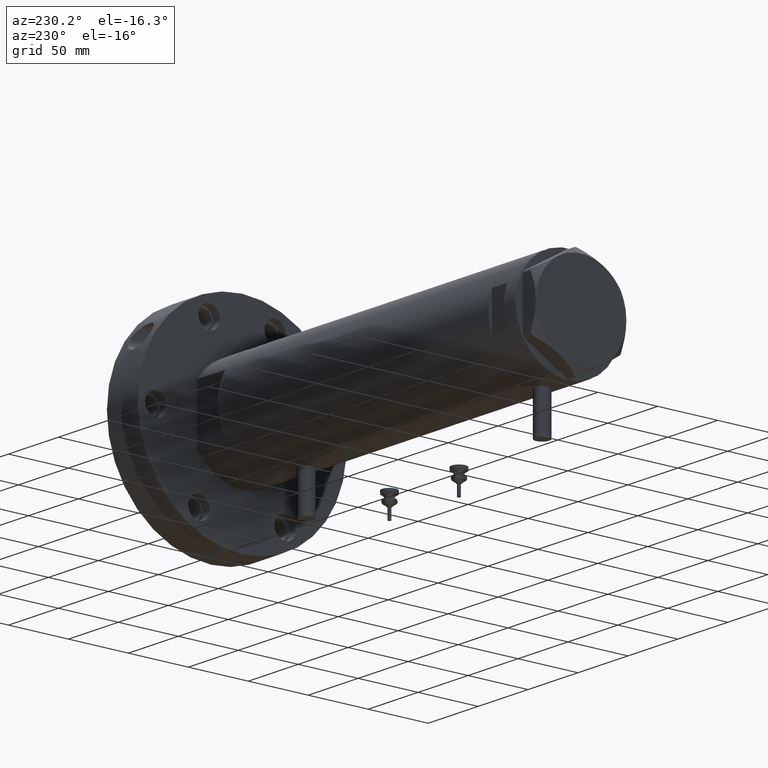
[diagram: clean part render]
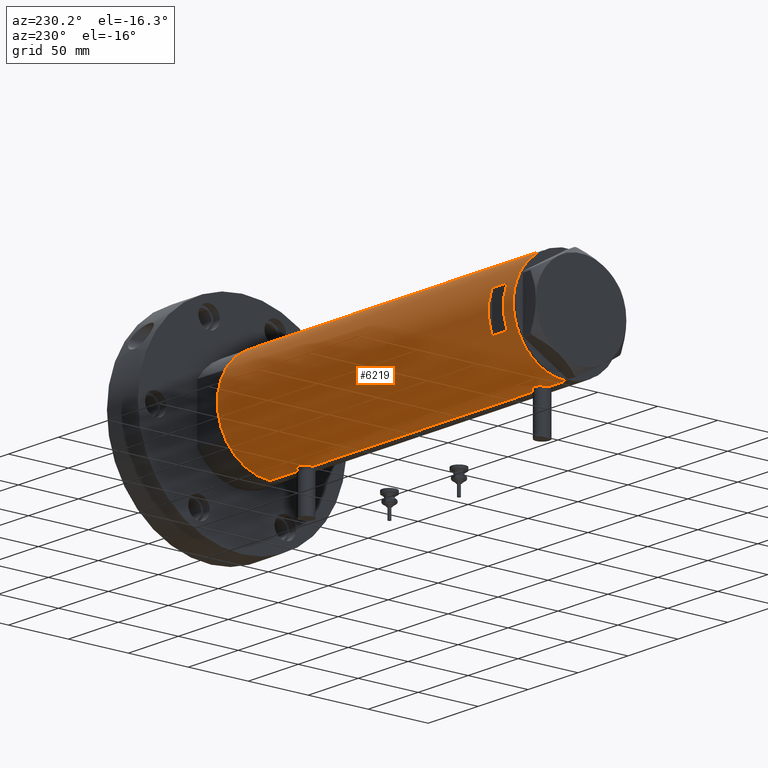
[diagram: same view with one face highlighted and labeled with its STEP entity id]
A machine part, auxiliary view. The second image highlights one B-rep face of the part: STEP entity #6219.
In plain terms, the highlighted cylindrical surface (partial cylindrical patch) has radius 44 mm, axis along (-1, -0, 0).
Its self-contained STEP definition (entity closure, byte-faithful):
#11 = ORIENTED_EDGE ( 'NONE', *, *, #5901, .F. ) ;
#50 = CARTESIAN_POINT ( 'NONE',  ( 43.71454618729809738, 5.012329428678965471, 134.5593697405831222 ) ) ;
#59 = DIRECTION ( 'NONE',  ( 1.000000000000000000, 0.000000000000000000, 0.000000000000000000 ) ) ;
#71 = CARTESIAN_POINT ( 'NONE',  ( 43.17306590853065984, 8.492365194390513849, -80.80987467306545113 ) ) ;
#93 = CARTESIAN_POINT ( 'NONE',  ( 43.88297407487989688, 3.222431612395376455, 116.4277179797065997 ) ) ;
#102 = DIRECTION ( 'NONE',  ( 0.000000000000000000, 0.000000000000000000, 1.000000000000000000 ) ) ;
#114 = CARTESIAN_POINT ( 'NONE',  ( 43.07641822757289418, 8.969229373860567733, -81.66603764209828853 ) ) ;
#119 = LINE ( 'NONE', #4131, #7492 ) ;
#120 = CARTESIAN_POINT ( 'NONE',  ( -43.83593455218809964, 3.811409182021288533, 129.1701492770350228 ) ) ;
#135 = CARTESIAN_POINT ( 'NONE',  ( 43.35294442506074120, 7.532526048221051873, 119.2906458550888829 ) ) ;
#172 = ORIENTED_EDGE ( 'NONE', *, *, #5696, .F. ) ;
#182 = CARTESIAN_POINT ( 'NONE',  ( 43.50382207688845426, 6.605942769308308371, -78.56395311161780626 ) ) ;
#189 = CARTESIAN_POINT ( 'NONE',  ( -43.55963022497230952, 6.210088036293396563, 125.0164616301742484 ) ) ;
#207 = CARTESIAN_POINT ( 'NONE',  ( 43.50265731352003939, 6.601850423195601003, 118.3818083270105177 ) ) ;
#225 = CARTESIAN_POINT ( 'NONE',  ( 42.96879251999280314, 9.470609476412112926, -89.32722899941057904 ) ) ;
#243 = CARTESIAN_POINT ( 'NONE',  ( -43.71938389712227746, 4.966728892888062852, -108.0838554765912960 ) ) ;
#316 = CARTESIAN_POINT ( 'NONE',  ( 0.000000000000000000, 0.000000000000000000, 138.1999999999999886 ) ) ;
#357 = CARTESIAN_POINT ( 'NONE',  ( -43.91315028150560096, 2.769134003554746482, -117.5068261937540370 ) ) ;
#394 = CARTESIAN_POINT ( 'NONE',  ( -43.74805001749254529, 4.711035428619386956, -116.0277606412579985 ) ) ;
#396 = EDGE_CURVE ( 'NONE', #5017, #1810, #119, .T. ) ;
#472 = CARTESIAN_POINT ( 'NONE',  ( -43.97754480947187261, 1.419697478855583839, 130.2900327605207451 ) ) ;
#533 = EDGE_CURVE ( 'NONE', #2483, #5858, #2572, .T. ) ;
#534 = CARTESIAN_POINT ( 'NONE',  ( 43.27822890220284791, 7.945655169171514487, -92.20725383289293120 ) ) ;
#622 = CARTESIAN_POINT ( 'NONE',  ( -44.00000000000000000, 3.205170455528113082E-15, 130.4500000000000171 ) ) ;
#642 = B_SPLINE_CURVE_WITH_KNOTS ( 'NONE', 3,
 ( #7450, #3408, #2261, #3981, #5723, #2226, #4558, #1691, #4020, #1120, #2833, #5152, #6339, #3441, #534, #2866, #5187, #4634, #728, #7063, #225, #1838, #4162, #5446, #3702, #1301, #4884, #2412, #4739, #6631, #114, #3547, #71, #3137, #3063, #1985, #6017, #182, #5403, #3023, #2487, #6481, #1262, #1375, #7213, #7097, #800, #2979, #2526, #2566 ),
 .UNSPECIFIED., .F., .F.,
 ( 4, 2, 2, 2, 2, 2, 2, 2, 2, 2, 2, 2, 2, 2, 2, 2, 2, 2, 2, 2, 2, 2, 2, 2, 4 ),
 ( 2.479523669370822448E-18, 0.001960456513248891482, 0.002940684769873340258, 0.003920913026497789035, 0.005881369539746669241, 0.006861597796371108476, 0.007841826052995546845, 0.009802282566244456541, 0.01078251082286890879, 0.01176273907949335930, 0.01274296733611781154, 0.01372319559274226206, 0.01568365210599112838, 0.01764410861923999124, 0.01960456513248885757, 0.02058479338911329073, 0.02156502164573771696, 0.02254524990236214665, 0.02352547815898657982, 0.02548593467223546696, 0.02646616292885991054, 0.02744639118548435758, 0.02940684769873324472, 0.03038707595535769176, 0.03136730421198213881 ),
 .UNSPECIFIED. ) ;
#664 = CARTESIAN_POINT ( 'NONE',  ( 42.86396777580259965, 9.934664719553397916, 127.2157619902652357 ) ) ;
#708 = CARTESIAN_POINT ( 'NONE',  ( 43.17306590853067405, 8.492365194390501415, 131.1901253269345773 ) ) ;
#728 = CARTESIAN_POINT ( 'NONE',  ( 43.04663170950394857, 9.110642017076081345, -90.23547502190392322 ) ) ;
#736 = CARTESIAN_POINT ( 'NONE',  ( -43.95549163632550460, 2.014511215452026160, 118.2694104429502460 ) ) ;
#751 = CARTESIAN_POINT ( 'NONE',  ( 44.00000000000001421, 0.3269372501759423844, 135.9000000000000625 ) ) ;
#773 = CARTESIAN_POINT ( 'NONE',  ( -44.00000000000000711, 0.4081702738789175222, 117.9500000000000313 ) ) ;
#784 = CARTESIAN_POINT ( 'NONE',  ( 42.84863276153905787, 9.999733523508361088, 125.2413009524922245 ) ) ;
#800 = CARTESIAN_POINT ( 'NONE',  ( 43.98169492814104586, 1.310824514239765426, -76.18080219619319848 ) ) ;
#823 = CARTESIAN_POINT ( 'NONE',  ( 43.61291203895921598, 5.829986172017925128, 117.7687128921317452 ) ) ;
#834 = CARTESIAN_POINT ( 'NONE',  ( 44.00000000000000000, -3.917104602093038540E-21, -76.10000000000000853 ) ) ;
#859 = CARTESIAN_POINT ( 'NONE',  ( -43.58362292239462477, 6.039157555656595733, -110.2773642155195688 ) ) ;
#867 = EDGE_CURVE ( 'NONE', #6317, #6572, #6440, .T. ) ;
#882 = DIRECTION ( 'NONE',  ( 0.000000000000000000, 0.000000000000000000, 1.000000000000000000 ) ) ;
#893 = CARTESIAN_POINT ( 'NONE',  ( -43.61859254253774054, 5.782454868881351295, -109.5021359910553542 ) ) ;
#924 = CIRCLE ( 'NONE', #6157, 44.00000000000000000 ) ;
#1113 = CARTESIAN_POINT ( 'NONE',  ( 0.000000000000000000, 0.000000000000000000, 123.1999999999999744 ) ) ;
#1120 = CARTESIAN_POINT ( 'NONE',  ( 43.61291203895921598, 5.829986172017927792, -94.23128710786834006 ) ) ;
#1232 = CARTESIAN_POINT ( 'NONE',  ( -43.59995593514495482, 5.920088975424567579, 126.2141790869178379 ) ) ;
#1246 = CARTESIAN_POINT ( 'NONE',  ( 43.04663170950396278, 9.110642017076083121, 121.7645249780961052 ) ) ;
#1262 = CARTESIAN_POINT ( 'NONE',  ( 43.80640706382533978, 4.134078575915388853, -76.98867178437912173 ) ) ;
#1267 = CARTESIAN_POINT ( 'NONE',  ( -43.61859207403892214, 5.782454990768616021, 126.5978640851534180 ) ) ;
#1282 = CARTESIAN_POINT ( 'NONE',  ( 43.88561577393363677, 3.228056721358719017, 135.3872166572783158 ) ) ;
#1301 = CARTESIAN_POINT ( 'NONE',  ( 42.84850876528984287, 10.00026482975807873, -85.44941694529576637 ) ) ;
#1321 = CARTESIAN_POINT ( 'NONE',  ( 43.98169492814102455, 1.310824514239774530, 135.8191978038068441 ) ) ;
#1339 = CIRCLE ( 'NONE', #4266, 44.00000000000000000 ) ;
#1359 = CARTESIAN_POINT ( 'NONE',  ( -43.99417607942194763, 0.8200150578638748522, -105.6906332748326207 ) ) ;
#1375 = CARTESIAN_POINT ( 'NONE',  ( 43.88561577393361546, 3.228056721358708803, -76.61278334272179791 ) ) ;
#1380 = CARTESIAN_POINT ( 'NONE',  ( -43.62981559643957752, 5.696090409300651025, 121.6194863458547673 ) ) ;
#1392 = CARTESIAN_POINT ( 'NONE',  ( 42.92259096922159500, 9.678247830257124207, 128.5000599302879323 ) ) ;
#1413 = VERTEX_POINT ( 'NONE', #7374 ) ;
#1432 = CARTESIAN_POINT ( 'NONE',  ( -43.66575107734168171, 5.414026674167576658, -115.0293508803769811 ) ) ;
#1469 = CARTESIAN_POINT ( 'NONE',  ( -43.64133398152736021, 5.607447751852152606, -114.6678604501243512 ) ) ;
#1481 = DIRECTION ( 'NONE',  ( 1.000000000000000000, 0.000000000000000000, 0.000000000000000000 ) ) ;
#1505 = VERTEX_POINT ( 'NONE', #3988 ) ;
#1511 = CARTESIAN_POINT ( 'NONE',  ( -15.96871942267132027, 40.99999999999999289, 123.1999999999999886 ) ) ;
#1544 = DIRECTION ( 'NONE',  ( 0.000000000000000000, 0.000000000000000000, 1.000000000000000000 ) ) ;
#1590 = VERTEX_POINT ( 'NONE', #5688 ) ;
#1610 = EDGE_CURVE ( 'NONE', #5571, #5114, #2639, .T. ) ;
#1691 = CARTESIAN_POINT ( 'NONE',  ( 43.77939001959703802, 4.442287752090381403, -95.08306177559161654 ) ) ;
#1698 = CARTESIAN_POINT ( 'NONE',  ( -44.00000000000000000, 3.205170455528113082E-15, 130.4500000000000171 ) ) ;
#1702 = DIRECTION ( 'NONE',  ( 1.000000000000000000, 0.000000000000000000, 0.000000000000000000 ) ) ;
#1762 = CARTESIAN_POINT ( 'NONE',  ( 44.00000000000000000, 0.000000000000000000, -148.1999999999999886 ) ) ;
#1806 = CARTESIAN_POINT ( 'NONE',  ( -43.55973179376101001, 6.209370339246233605, 123.3793823294013379 ) ) ;
#1810 = VERTEX_POINT ( 'NONE', #7409 ) ;
#1823 = CARTESIAN_POINT ( 'NONE',  ( 43.35257020184193522, 7.523219862841646233, 132.4960255408413730 ) ) ;
#1827 = VECTOR ( 'NONE', #1544, 1000.000000000000000 ) ;
#1838 = CARTESIAN_POINT ( 'NONE',  ( 42.92624534982630280, 9.661626915142804251, -88.70008004144708025 ) ) ;
#1846 = CARTESIAN_POINT ( 'NONE',  ( -43.55386785759471735, 6.249847571481741859, 124.6105494761795569 ) ) ;
#1858 = CARTESIAN_POINT ( 'NONE',  ( 43.39051256276903956, 7.301963662770305064, 132.7402446821294575 ) ) ;
#1869 = DIRECTION ( 'NONE',  ( -0.000000000000000000, -0.000000000000000000, -1.000000000000000000 ) ) ;
#1877 = CARTESIAN_POINT ( 'NONE',  ( -43.74805001749256661, 4.711035428619386956, 120.0722393587420669 ) ) ;
#1893 = CARTESIAN_POINT ( 'NONE',  ( 43.27871541412905287, 7.937063204555979468, 131.9917499724603545 ) ) ;
#1932 = CARTESIAN_POINT ( 'NONE',  ( -44.00000000000000000, 4.742435893011557518E-16, -105.6499999999999915 ) ) ;
#1956 = ORIENTED_EDGE ( 'NONE', *, *, #6657, .F. ) ;
#1970 = CARTESIAN_POINT ( 'NONE',  ( 43.94229162222109863, 2.275476993733910547, 116.1568553577769620 ) ) ;
#1985 = CARTESIAN_POINT ( 'NONE',  ( 43.35257020184193522, 7.523219862841656003, -79.50397445915866967 ) ) ;
#2047 = CARTESIAN_POINT ( 'NONE',  ( -43.97068415157983878, 1.617901284326946909, -105.8595487169995266 ) ) ;
#2061 = CARTESIAN_POINT ( 'NONE',  ( 15.96871942267132027, 40.99999999999999289, 138.1999999999999886 ) ) ;
#2086 = CARTESIAN_POINT ( 'NONE',  ( -43.99413512814552263, 0.8228129877960659311, -118.1090831432582604 ) ) ;
#2088 = DIRECTION ( 'NONE',  ( 1.000000000000000000, -8.881784197001252323E-16, 0.000000000000000000 ) ) ;
#2158 = CARTESIAN_POINT ( 'NONE',  ( -43.55382423478827292, 6.250151562062086441, -112.3058952948734088 ) ) ;
#2184 = VERTEX_POINT ( 'NONE', #1511 ) ;
#2196 = CARTESIAN_POINT ( 'NONE',  ( -44.00000000000001421, 0.4135148353567998369, 130.4500000000000171 ) ) ;
#2212 = CARTESIAN_POINT ( 'NONE',  ( -15.96871942267132027, 40.99999999999999289, 138.1999999999999886 ) ) ;
#2226 = CARTESIAN_POINT ( 'NONE',  ( 43.88297407487990398, 3.222431612395379119, -95.57228202029342867 ) ) ;
#2231 = CARTESIAN_POINT ( 'NONE',  ( -43.95446647384545003, 2.010857111636596084, 130.1212422636393455 ) ) ;
#2261 = CARTESIAN_POINT ( 'NONE',  ( 43.98503110884232115, 1.314607393679875669, -96.03470984345551642 ) ) ;
#2378 = VECTOR ( 'NONE', #1869, 1000.000000000000000 ) ;
#2390 = CARTESIAN_POINT ( 'NONE',  ( 43.85884410404901246, 3.534688330930383593, 116.5398019124966424 ) ) ;
#2398 = CARTESIAN_POINT ( 'NONE',  ( 0.000000000000000000, 0.000000000000000000, -148.1999999999999886 ) ) ;
#2412 = CARTESIAN_POINT ( 'NONE',  ( 42.92259096922160921, 9.678247830257127760, -83.49994006971209615 ) ) ;
#2419 = CARTESIAN_POINT ( 'NONE',  ( -43.71901936021024682, 4.969830049220625767, 120.3883236230112743 ) ) ;
#2427 = ORIENTED_EDGE ( 'NONE', *, *, #7288, .F. ) ;
#2434 = CARTESIAN_POINT ( 'NONE',  ( 42.96547725528407824, 9.488625330801086832, 129.1245034721107743 ) ) ;
#2459 = CARTESIAN_POINT ( 'NONE',  ( -43.66555354895123742, 5.415612800338316823, 127.3265635717755515 ) ) ;
#2471 = CARTESIAN_POINT ( 'NONE',  ( 43.27822890220284791, 7.945655169171514487, 119.7927461671070830 ) ) ;
#2483 = VERTEX_POINT ( 'NONE', #7338 ) ;
#2487 = CARTESIAN_POINT ( 'NONE',  ( 43.71454618729809027, 5.012329428678959253, -77.44063025941690626 ) ) ;
#2509 = CARTESIAN_POINT ( 'NONE',  ( 43.07641822757289418, 8.969229373860580168, 130.3339623579017257 ) ) ;
#2511 = LINE ( 'NONE', #6762, #1827 ) ;
#2526 = CARTESIAN_POINT ( 'NONE',  ( 44.00000000000002132, 0.3269372501759363336, -76.10000000000002274 ) ) ;
#2534 = CARTESIAN_POINT ( 'NONE',  ( -43.58221825186232223, 6.049526113783017855, 122.5773702918204293 ) ) ;
#2549 = CARTESIAN_POINT ( 'NONE',  ( 42.84850876528984287, 10.00026482975808406, 126.5505830547042621 ) ) ;
#2550 = CIRCLE ( 'NONE', #5947, 44.00000000000000000 ) ;
#2566 = CARTESIAN_POINT ( 'NONE',  ( 44.00000000000000000, -3.917104602093038540E-21, -76.10000000000000853 ) ) ;
#2572 = LINE ( 'NONE', #7329, #7124 ) ;
#2617 = CARTESIAN_POINT ( 'NONE',  ( -43.99999999999997158, 0.4081702738789203533, -118.1499999999999631 ) ) ;
#2639 = B_SPLINE_CURVE_WITH_KNOTS ( 'NONE', 3,
 ( #1698, #2196, #6264, #472, #7456, #2231, #4247, #5410, #7028, #120, #6452, #7181, #6521, #7071, #2459, #3677, #1267, #1232, #3635, #5989, #189, #1846, #6025, #1806, #2534, #4782, #1380, #4853, #7140, #4813, #2419, #1877, #5342, #4168, #3553, #3069, #6486, #3593, #736, #3030, #4132, #773, #3707 ),
 .UNSPECIFIED., .F., .F.,
 ( 4, 2, 2, 2, 2, 2, 2, 2, 1, 2, 2, 2, 2, 2, 2, 2, 2, 2, 2, 2, 2, 4 ),
 ( 3.114226524098576417E-18, 0.001222818171749707637, 0.001834227257624559829, 0.002445636343499412238, 0.003668454515249116622, 0.004891272686998821874, 0.006114090858748525391, 0.006725499944623378884, 0.007336909030498230642, 0.007948318116373082401, 0.008559727202247935027, 0.009782545373997636809, 0.01100536354574729869, 0.01222818171749695884, 0.01283959080337180973, 0.01345099988924666062, 0.01467381806099635894, 0.01589663623274606072, 0.01650804531862090987, 0.01711945440449575903, 0.01834227257624546428, 0.01956509074799516260 ),
 .UNSPECIFIED. ) ;
#2656 = CARTESIAN_POINT ( 'NONE',  ( -43.67863969133946966, 5.309394106110037370, -108.5962070349745403 ) ) ;
#2697 = ORIENTED_EDGE ( 'NONE', *, *, #1610, .F. ) ;
#2732 = CARTESIAN_POINT ( 'NONE',  ( -43.91413175532567692, 2.773555030353453965, -106.2841576163325925 ) ) ;
#2827 = CARTESIAN_POINT ( 'NONE',  ( -44.00000000000000000, 5.388445781982983516E-15, -118.1500000000000057 ) ) ;
#2833 = CARTESIAN_POINT ( 'NONE',  ( 43.57657781376908446, 6.094873943596679666, -94.03474301119597101 ) ) ;
#2866 = CARTESIAN_POINT ( 'NONE',  ( 43.17277162440355198, 8.493905080221260562, -91.38787035108497037 ) ) ;
#2979 = CARTESIAN_POINT ( 'NONE',  ( 43.99635668041006653, 0.6544833911834552209, -76.11599291522472299 ) ) ;
#3001 = CARTESIAN_POINT ( 'NONE',  ( 43.46520118248736253, 6.843279251446918288, 118.6010167278784024 ) ) ;
#3023 = CARTESIAN_POINT ( 'NONE',  ( 43.68141895191830315, 5.292250119194731539, -77.60895047714808470 ) ) ;
#3030 = CARTESIAN_POINT ( 'NONE',  ( -43.97181775256599678, 1.624866278047412349, 118.1510708161490442 ) ) ;
#3036 = CARTESIAN_POINT ( 'NONE',  ( 44.00000000000000000, 0.000000000000000000, -148.1999999999999886 ) ) ;
#3039 = AXIS2_PLACEMENT_3D ( 'NONE', #1113, #3434, #5328 ) ;
#3045 = CARTESIAN_POINT ( 'NONE',  ( 43.57657781376909156, 6.094873943596689436, 117.9652569888040858 ) ) ;
#3063 = CARTESIAN_POINT ( 'NONE',  ( 43.27871541412905287, 7.937063204555986573, -80.00825002753971660 ) ) ;
#3069 = CARTESIAN_POINT ( 'NONE',  ( -43.88883895882798925, 3.130924084324100409, 118.7868754425185216 ) ) ;
#3081 = CARTESIAN_POINT ( 'NONE',  ( 44.00000000000000000, -3.917205576288906830E-21, 135.9000000000000341 ) ) ;
#3137 = CARTESIAN_POINT ( 'NONE',  ( 43.24261242176995523, 8.130827601038827623, -80.26944813145831858 ) ) ;
#3158 = CARTESIAN_POINT ( 'NONE',  ( -43.88883895882799635, 3.130924084324101297, -117.3131245574814727 ) ) ;
#3190 = CARTESIAN_POINT ( 'NONE',  ( -43.74833112883977293, 4.708208586952001617, -107.7694961649112457 ) ) ;
#3222 = CARTESIAN_POINT ( 'NONE',  ( -43.57657963456318839, 6.089610171536606664, -110.4782146041918622 ) ) ;
#3408 = CARTESIAN_POINT ( 'NONE',  ( 44.00000000000001421, 0.6630566900259825536, -96.09999999999998010 ) ) ;
#3434 = DIRECTION ( 'NONE',  ( -0.000000000000000000, -0.000000000000000000, 1.000000000000000000 ) ) ;
#3441 = CARTESIAN_POINT ( 'NONE',  ( 43.35294442506072699, 7.532526048221049209, -92.70935414491108872 ) ) ;
#3525 = EDGE_CURVE ( 'NONE', #7087, #2483, #924, .T. ) ;
#3547 = CARTESIAN_POINT ( 'NONE',  ( 43.13962074468734897, 8.660138848900672315, -81.08910258836064600 ) ) ;
#3553 = CARTESIAN_POINT ( 'NONE',  ( -43.87596296923809547, 3.305851531861729420, 118.8919641412373522 ) ) ;
#3558 = DIRECTION ( 'NONE',  ( 0.000000000000000000, 0.000000000000000000, 1.000000000000000000 ) ) ;
#3564 = ORIENTED_EDGE ( 'NONE', *, *, #5983, .T. ) ;
#3571 = CARTESIAN_POINT ( 'NONE',  ( 42.99303682946561622, 9.360292926890506848, 122.3657577979279836 ) ) ;
#3593 = CARTESIAN_POINT ( 'NONE',  ( -43.92459115390705904, 2.581892149020998506, 118.5045417292665491 ) ) ;
#3608 = CARTESIAN_POINT ( 'NONE',  ( 42.92624534982631701, 9.661626915142806027, 123.2999199585529482 ) ) ;
#3622 = ORIENTED_EDGE ( 'NONE', *, *, #4291, .T. ) ;
#3635 = CARTESIAN_POINT ( 'NONE',  ( -43.58362292239463187, 6.039157555656599285, 125.8226357844804681 ) ) ;
#3651 = CARTESIAN_POINT ( 'NONE',  ( 43.99635668041006653, 0.6544833911834624374, 135.8840070847753623 ) ) ;
#3677 = CARTESIAN_POINT ( 'NONE',  ( -43.64122538274736485, 5.608286354294323317, 126.9661138696334177 ) ) ;
#3702 = CARTESIAN_POINT ( 'NONE',  ( 42.84863276153905076, 9.999733523508359312, -86.75869904750777550 ) ) ;
#3707 = CARTESIAN_POINT ( 'NONE',  ( -44.00000000000000000, 5.388445781982983516E-15, 117.9500000000000028 ) ) ;
#3721 = CARTESIAN_POINT ( 'NONE',  ( 43.13962074468733476, 8.660138848900681197, 130.9108974116393540 ) ) ;
#3761 = CARTESIAN_POINT ( 'NONE',  ( -43.80687348212602217, 4.128385987736833407, -116.6104874331096255 ) ) ;
#3799 = CARTESIAN_POINT ( 'NONE',  ( -43.95549163632549750, 2.014511215452027937, -117.8305895570497768 ) ) ;
#3831 = CARTESIAN_POINT ( 'NONE',  ( -43.67867890111967455, 5.309046579850785541, -115.2042277907602141 ) ) ;
#3874 = CARTESIAN_POINT ( 'NONE',  ( -43.62981559643959883, 5.696090409300652802, -114.4805136541452271 ) ) ;
#3875 = CARTESIAN_POINT ( 'NONE',  ( 44.00000000000000000, 0.000000000000000000, 148.1999999999999886 ) ) ;
#3916 = CARTESIAN_POINT ( 'NONE',  ( -43.94507179847653333, 2.206027755801677870, -106.0486847771820322 ) ) ;
#3981 = CARTESIAN_POINT ( 'NONE',  ( 43.94229162222109863, 2.275476993733910991, -95.84314464222305219 ) ) ;
#3988 = CARTESIAN_POINT ( 'NONE',  ( -44.00000000000000000, 4.742435893011557518E-16, -105.6499999999999915 ) ) ;
#4008 = ORIENTED_EDGE ( 'NONE', *, *, #5345, .F. ) ;
#4020 = CARTESIAN_POINT ( 'NONE',  ( 43.71659050864931828, 5.015880325000607876, -94.77566825963822339 ) ) ;
#4034 = ORIENTED_EDGE ( 'NONE', *, *, #4410, .F. ) ;
#4088 = DIRECTION ( 'NONE',  ( 0.000000000000000000, 0.000000000000000000, 1.000000000000000000 ) ) ;
#4122 = EDGE_LOOP ( 'NONE', ( #7349, #7279, #4008, #3622, #2697, #3564, #7507, #2427, #6316, #5323, #4034, #172 ) ) ;
#4124 = CARTESIAN_POINT ( 'NONE',  ( -44.00000000000000000, 5.388445916248353619E-15, -148.1999999999999886 ) ) ;
#4131 = CARTESIAN_POINT ( 'NONE',  ( 44.00000000000000000, 0.000000000000000000, -148.1999999999999886 ) ) ;
#4132 = CARTESIAN_POINT ( 'NONE',  ( -43.99413512814552973, 0.8228129877960675964, 117.9909168567418050 ) ) ;
#4136 = LINE ( 'NONE', #6457, #5216 ) ;
#4147 = CARTESIAN_POINT ( 'NONE',  ( 43.97062489912107708, 1.639461988184804486, 135.7701462666599070 ) ) ;
#4162 = CARTESIAN_POINT ( 'NONE',  ( 42.90786968859020334, 9.742642423712169375, -88.37802296547127412 ) ) ;
#4168 = CARTESIAN_POINT ( 'NONE',  ( -43.83576802966639008, 3.813209221108460500, 119.2313450964529125 ) ) ;
#4181 = CARTESIAN_POINT ( 'NONE',  ( 43.57805684119163914, 6.103282219787171670, 133.8481620164786534 ) ) ;
#4221 = CARTESIAN_POINT ( 'NONE',  ( 43.77712723341632994, 4.432620652875505662, 134.8699500975996557 ) ) ;
#4247 = CARTESIAN_POINT ( 'NONE',  ( -43.94507179847653333, 2.206027755801685863, 130.0513152228180047 ) ) ;
#4260 = CARTESIAN_POINT ( 'NONE',  ( -44.00000000000000711, 0.4135148353567996149, -105.6499999999999773 ) ) ;
#4266 = AXIS2_PLACEMENT_3D ( 'NONE', #316, #5534, #2088 ) ;
#4291 = EDGE_CURVE ( 'NONE', #1505, #5114, #4699, .T. ) ;
#4333 = CARTESIAN_POINT ( 'NONE',  ( -43.97181775256600389, 1.624866278047415680, -117.9489291838509502 ) ) ;
#4385 = CYLINDRICAL_SURFACE ( 'NONE', #7298, 44.00000000000000000 ) ;
#4410 = EDGE_CURVE ( 'NONE', #6969, #5017, #642, .T. ) ;
#4412 = CARTESIAN_POINT ( 'NONE',  ( -44.00000000000000000, 5.388445781982983516E-15, -118.1500000000000057 ) ) ;
#4457 = B_SPLINE_CURVE_WITH_KNOTS ( 'NONE', 3,
 ( #6040, #4867, #7194, #1970, #7156, #93, #2390, #4794, #7116, #823, #3045, #207, #3001, #135, #2471, #5927, #5425, #6577, #1246, #3571, #6615, #3608, #5888, #5966, #784, #2549, #664, #1392, #2434, #5279, #2509, #3721, #708, #4760, #1893, #1823, #1858, #7084, #4181, #6502, #50, #4221, #4722, #1282, #6538, #4147, #1321, #3651, #751, #3081 ),
 .UNSPECIFIED., .F., .F.,
 ( 4, 2, 2, 2, 2, 2, 2, 2, 2, 2, 2, 2, 2, 2, 2, 2, 2, 2, 2, 2, 2, 2, 2, 2, 4 ),
 ( 1.676565531868734773E-18, 0.001960456513248841175, 0.002940684769873264798, 0.003920913026497689288, 0.005881369539746519187, 0.006861597796370934137, 0.007841826052995349086, 0.009802282566244210210, 0.01078251082286863817, 0.01176273907949306613, 0.01274296733611749582, 0.01372319559274192378, 0.01568365210599073981, 0.01764410861923955062, 0.01960456513248837185, 0.02058479338911281889, 0.02156502164573726593, 0.02254524990236171644, 0.02352547815898616002, 0.02548593467223511655, 0.02646616292885961563, 0.02744639118548411472, 0.02940684769873311635, 0.03038707595535761891, 0.03136730421198213187 ),
 .UNSPECIFIED. ) ;
#4491 = CARTESIAN_POINT ( 'NONE',  ( -43.83576802966640429, 3.813209221108459168, -116.8686549035471103 ) ) ;
#4558 = CARTESIAN_POINT ( 'NONE',  ( 43.85884410404901956, 3.534688330930385369, -95.46019808750335756 ) ) ;
#4585 = LINE ( 'NONE', #6941, #7548 ) ;
#4634 = CARTESIAN_POINT ( 'NONE',  ( 43.07598348983507464, 8.971306953823010133, -90.52969423187184361 ) ) ;
#4699 = LINE ( 'NONE', #4124, #4958 ) ;
#4722 = CARTESIAN_POINT ( 'NONE',  ( 43.80640706382533267, 4.134078575915394183, 135.0113282156208641 ) ) ;
#4739 = CARTESIAN_POINT ( 'NONE',  ( 42.96547725528408535, 9.488625330801085056, -82.87549652788929677 ) ) ;
#4760 = CARTESIAN_POINT ( 'NONE',  ( 43.24261242176996234, 8.130827601038818742, 131.7305518685417383 ) ) ;
#4782 = CARTESIAN_POINT ( 'NONE',  ( -43.59867737633044982, 5.931302618788632408, 122.1875050497011301 ) ) ;
#4794 = CARTESIAN_POINT ( 'NONE',  ( 43.77939001959704513, 4.442287752090381403, 116.9169382244084119 ) ) ;
#4813 = CARTESIAN_POINT ( 'NONE',  ( -43.67867890111968165, 5.309046579850784653, 120.8957722092397660 ) ) ;
#4843 = CARTESIAN_POINT ( 'NONE',  ( 15.96871942267132027, 40.99999999999999289, -148.1999999999999886 ) ) ;
#4853 = CARTESIAN_POINT ( 'NONE',  ( -43.64133398152736021, 5.607447751852150830, 121.4321395498756573 ) ) ;
#4867 = CARTESIAN_POINT ( 'NONE',  ( 44.00000000000001421, 0.6630566900259826646, 115.9000000000000483 ) ) ;
#4884 = CARTESIAN_POINT ( 'NONE',  ( 42.86396777580259254, 9.934664719553399692, -84.78423800973480695 ) ) ;
#4940 = ORIENTED_EDGE ( 'NONE', *, *, #6702, .F. ) ;
#4958 = VECTOR ( 'NONE', #6870, 1000.000000000000000 ) ;
#4975 = CARTESIAN_POINT ( 'NONE',  ( -43.66555354895124452, 5.415612800338318600, -108.7734364282244712 ) ) ;
#4988 = CARTESIAN_POINT ( 'NONE',  ( 0.000000000000000000, 0.000000000000000000, -148.1999999999999886 ) ) ;
#5013 = CARTESIAN_POINT ( 'NONE',  ( -43.80646232387288563, 4.132500855894024383, -107.1935441459664275 ) ) ;
#5017 = VERTEX_POINT ( 'NONE', #834 ) ;
#5047 = CARTESIAN_POINT ( 'NONE',  ( -43.88968326835893663, 3.132363423941621150, -106.4762076764352088 ) ) ;
#5060 = CARTESIAN_POINT ( 'NONE',  ( -44.00000000000000000, 5.388445781982983516E-15, 117.9500000000000028 ) ) ;
#5114 = VERTEX_POINT ( 'NONE', #5060 ) ;
#5152 = CARTESIAN_POINT ( 'NONE',  ( 43.50265731352003939, 6.601850423195591233, -93.61819167298956756 ) ) ;
#5161 = CARTESIAN_POINT ( 'NONE',  ( 0.000000000000000000, 0.000000000000000000, 148.1999999999999886 ) ) ;
#5187 = CARTESIAN_POINT ( 'NONE',  ( 43.13897484505559987, 8.663345277311670145, -91.10529600060513644 ) ) ;
#5216 = VECTOR ( 'NONE', #3558, 1000.000000000000000 ) ;
#5279 = CARTESIAN_POINT ( 'NONE',  ( 43.04652664061920575, 9.111152824375430725, 130.0345800921458874 ) ) ;
#5318 = CARTESIAN_POINT ( 'NONE',  ( 15.96871942267132027, 40.99999999999999289, 123.1999999999999886 ) ) ;
#5323 = ORIENTED_EDGE ( 'NONE', *, *, #396, .F. ) ;
#5327 = EDGE_CURVE ( 'NONE', #1810, #1413, #4457, .T. ) ;
#5328 = DIRECTION ( 'NONE',  ( -1.000000000000000000, -8.881784197001252323E-16, 0.000000000000000000 ) ) ;
#5342 = CARTESIAN_POINT ( 'NONE',  ( -43.80687348212601506, 4.128385987736831630, 119.4895125668903830 ) ) ;
#5345 = EDGE_CURVE ( 'NONE', #1505, #5858, #6714, .T. ) ;
#5403 = CARTESIAN_POINT ( 'NONE',  ( 43.57805684119164624, 6.103282219787162788, -78.15183798352141764 ) ) ;
#5409 = DIRECTION ( 'NONE',  ( 0.000000000000000000, 0.000000000000000000, 1.000000000000000000 ) ) ;
#5410 = CARTESIAN_POINT ( 'NONE',  ( -43.91413175532566981, 2.773555030353461515, 129.8158423836674729 ) ) ;
#5425 = CARTESIAN_POINT ( 'NONE',  ( 43.13897484505559277, 8.663345277311664816, 120.8947039993948920 ) ) ;
#5446 = CARTESIAN_POINT ( 'NONE',  ( 42.86370458161097474, 9.935807968041563853, -87.40904550429864628 ) ) ;
#5533 = CARTESIAN_POINT ( 'NONE',  ( -43.55963022497231663, 6.210088036293396563, -111.0835383698257601 ) ) ;
#5534 = DIRECTION ( 'NONE',  ( -0.000000000000000000, -0.000000000000000000, -1.000000000000000000 ) ) ;
#5554 = EDGE_CURVE ( 'NONE', #6666, #1590, #2550, .T. ) ;
#5571 = VERTEX_POINT ( 'NONE', #622 ) ;
#5616 = CARTESIAN_POINT ( 'NONE',  ( -43.59995593514495482, 5.920088975424566691, -109.8858209130821848 ) ) ;
#5683 = LINE ( 'NONE', #1762, #6212 ) ;
#5688 = CARTESIAN_POINT ( 'NONE',  ( -44.00000000000000000, 5.388445916248353619E-15, 148.1999999999999886 ) ) ;
#5696 = EDGE_CURVE ( 'NONE', #7087, #6969, #4136, .T. ) ;
#5723 = CARTESIAN_POINT ( 'NONE',  ( 43.92466059386730137, 2.593004216484783964, -95.76356669671355348 ) ) ;
#5858 = VERTEX_POINT ( 'NONE', #2827 ) ;
#5888 = CARTESIAN_POINT ( 'NONE',  ( 42.90786968859020334, 9.742642423712167599, 123.6219770345287543 ) ) ;
#5901 = EDGE_CURVE ( 'NONE', #6572, #2184, #7542, .T. ) ;
#5927 = CARTESIAN_POINT ( 'NONE',  ( 43.17277162440354488, 8.493905080221260562, 120.6121296489150723 ) ) ;
#5947 = AXIS2_PLACEMENT_3D ( 'NONE', #5161, #6922, #1702 ) ;
#5966 = CARTESIAN_POINT ( 'NONE',  ( 42.86370458161098185, 9.935807968041567406, 124.5909544957013253 ) ) ;
#5983 = EDGE_CURVE ( 'NONE', #5571, #1590, #4585, .T. ) ;
#5989 = CARTESIAN_POINT ( 'NONE',  ( -43.57657963456318839, 6.089610171536609329, 125.6217853958080894 ) ) ;
#6004 = CARTESIAN_POINT ( 'NONE',  ( -43.97754480947185129, 1.419697478855583617, -105.8099672394792066 ) ) ;
#6017 = CARTESIAN_POINT ( 'NONE',  ( 43.39051256276903246, 7.301963662770312169, -79.25975531787059936 ) ) ;
#6025 = CARTESIAN_POINT ( 'NONE',  ( -43.55382423478828713, 6.250151562062088217, 123.7941047051266281 ) ) ;
#6040 = CARTESIAN_POINT ( 'NONE',  ( 44.00000000000000000, -1.726036355082439716E-15, 115.9000000000000199 ) ) ;
#6079 = CARTESIAN_POINT ( 'NONE',  ( -43.87596296923810968, 3.305851531861728976, -117.2080358587625994 ) ) ;
#6157 = AXIS2_PLACEMENT_3D ( 'NONE', #2398, #102, #59 ) ;
#6194 = CARTESIAN_POINT ( 'NONE',  ( -43.71901936021023971, 4.969830049220626655, -115.7116763769886916 ) ) ;
#6212 = VECTOR ( 'NONE', #4088, 1000.000000000000000 ) ;
#6219 = ADVANCED_FACE ( 'NONE', ( #6703, #7393 ), #4385, .T. ) ;
#6235 = CARTESIAN_POINT ( 'NONE',  ( -43.64122538274737195, 5.608286354294323317, -109.1338861303666192 ) ) ;
#6264 = CARTESIAN_POINT ( 'NONE',  ( -43.99417607942194763, 0.8200150578638757404, 130.4093667251674162 ) ) ;
#6275 = EDGE_LOOP ( 'NONE', ( #11, #7161, #4940, #1956 ) ) ;
#6282 = DIRECTION ( 'NONE',  ( 0.000000000000000000, 0.000000000000000000, 1.000000000000000000 ) ) ;
#6316 = ORIENTED_EDGE ( 'NONE', *, *, #5327, .F. ) ;
#6317 = VERTEX_POINT ( 'NONE', #2061 ) ;
#6333 = VERTEX_POINT ( 'NONE', #2212 ) ;
#6339 = CARTESIAN_POINT ( 'NONE',  ( 43.46520118248735542, 6.843279251446915623, -93.39898327212165441 ) ) ;
#6440 = LINE ( 'NONE', #4843, #2378 ) ;
#6452 = CARTESIAN_POINT ( 'NONE',  ( -43.80646232387288563, 4.132500855894035929, 128.9064558540335668 ) ) ;
#6457 = CARTESIAN_POINT ( 'NONE',  ( 44.00000000000000000, 0.000000000000000000, -148.1999999999999886 ) ) ;
#6481 = CARTESIAN_POINT ( 'NONE',  ( 43.77712723341632284, 4.432620652875495892, -77.13004990240027325 ) ) ;
#6486 = CARTESIAN_POINT ( 'NONE',  ( -43.91315028150558675, 2.769134003554747370, 118.5931738062459573 ) ) ;
#6502 = CARTESIAN_POINT ( 'NONE',  ( 43.68141895191831736, 5.292250119194742197, 134.3910495228520006 ) ) ;
#6521 = CARTESIAN_POINT ( 'NONE',  ( -43.71938389712227035, 4.966728892888069069, 128.0161445234087125 ) ) ;
#6538 = CARTESIAN_POINT ( 'NONE',  ( 43.92756755766648524, 2.604528169608123722, 135.5771341190234409 ) ) ;
#6572 = VERTEX_POINT ( 'NONE', #5318 ) ;
#6577 = CARTESIAN_POINT ( 'NONE',  ( 43.07598348983508174, 8.971306953823004804, 121.4703057681281138 ) ) ;
#6615 = CARTESIAN_POINT ( 'NONE',  ( 42.96879251999278893, 9.470609476412109373, 122.6727710005894352 ) ) ;
#6631 = CARTESIAN_POINT ( 'NONE',  ( 43.04652664061920575, 9.111152824375425396, -81.96541990785412679 ) ) ;
#6652 = CARTESIAN_POINT ( 'NONE',  ( -43.55386785759471024, 6.249847571481740971, -111.4894505238204374 ) ) ;
#6657 = EDGE_CURVE ( 'NONE', #2184, #6333, #2511, .T. ) ;
#6666 = VERTEX_POINT ( 'NONE', #3875 ) ;
#6702 = EDGE_CURVE ( 'NONE', #6333, #6317, #1339, .T. ) ;
#6703 = FACE_BOUND ( 'NONE', #6275, .T. ) ;
#6714 = B_SPLINE_CURVE_WITH_KNOTS ( 'NONE', 3,
 ( #1932, #4260, #1359, #6004, #2047, #6761, #3916, #2732, #5047, #7378, #5013, #3190, #243, #2656, #4975, #6235, #893, #5616, #859, #3222, #5533, #6652, #2158, #6725, #7264, #7306, #3874, #1469, #1432, #3831, #6194, #394, #3761, #4491, #6079, #3158, #357, #6806, #3799, #4333, #2086, #2617, #4412 ),
 .UNSPECIFIED., .F., .F.,
 ( 4, 2, 2, 2, 2, 2, 2, 2, 1, 2, 2, 2, 2, 2, 2, 2, 2, 2, 2, 2, 2, 4 ),
 ( 4.607873388256435088E-19, 0.001222818171749670340, 0.001834227257624505619, 0.002445636343499341114, 0.003668454515249027284, 0.004891272686998713454, 0.006114090858748398756, 0.006725499944623259188, 0.007336909030498119620, 0.007948318116372978318, 0.008559727202247837882, 0.009782545373997518848, 0.01100536354574719981, 0.01222818171749687904, 0.01283959080337173861, 0.01345099988924659644, 0.01467381806099631383, 0.01589663623274603296, 0.01650804531862088906, 0.01711945440449574862, 0.01834227257624546428, 0.01956509074799517994 ),
 .UNSPECIFIED. ) ;
#6725 = CARTESIAN_POINT ( 'NONE',  ( -43.55973179376100290, 6.209370339246232717, -112.7206176705986849 ) ) ;
#6761 = CARTESIAN_POINT ( 'NONE',  ( -43.95446647384543581, 2.010857111636599637, -105.9787577363606346 ) ) ;
#6762 = CARTESIAN_POINT ( 'NONE',  ( -15.96871942267132027, 40.99999999999999289, -148.1999999999999886 ) ) ;
#6806 = CARTESIAN_POINT ( 'NONE',  ( -43.92459115390705193, 2.581892149020998950, -117.5954582707334595 ) ) ;
#6870 = DIRECTION ( 'NONE',  ( 0.000000000000000000, 0.000000000000000000, 1.000000000000000000 ) ) ;
#6922 = DIRECTION ( 'NONE',  ( 0.000000000000000000, 0.000000000000000000, 1.000000000000000000 ) ) ;
#6941 = CARTESIAN_POINT ( 'NONE',  ( -44.00000000000000000, 5.388445916248353619E-15, -148.1999999999999886 ) ) ;
#6969 = VERTEX_POINT ( 'NONE', #7187 ) ;
#7028 = CARTESIAN_POINT ( 'NONE',  ( -43.88968326835894374, 3.132363423941633140, 129.6237923235648282 ) ) ;
#7063 = CARTESIAN_POINT ( 'NONE',  ( 42.99303682946561622, 9.360292926890510401, -89.63424220207205906 ) ) ;
#7071 = CARTESIAN_POINT ( 'NONE',  ( -43.67863969133946966, 5.309394106110044476, 127.5037929650255109 ) ) ;
#7084 = CARTESIAN_POINT ( 'NONE',  ( 43.50382207688847558, 6.605942769308297713, 133.4360468883822932 ) ) ;
#7087 = VERTEX_POINT ( 'NONE', #3036 ) ;
#7097 = CARTESIAN_POINT ( 'NONE',  ( 43.97062489912107708, 1.639461988184795826, -76.22985373334013559 ) ) ;
#7116 = CARTESIAN_POINT ( 'NONE',  ( 43.71659050864932539, 5.015880325000607876, 117.2243317403618477 ) ) ;
#7124 = VECTOR ( 'NONE', #882, 1000.000000000000000 ) ;
#7140 = CARTESIAN_POINT ( 'NONE',  ( -43.66575107734167460, 5.414026674167574882, 121.0706491196229848 ) ) ;
#7156 = CARTESIAN_POINT ( 'NONE',  ( 43.92466059386730848, 2.593004216484782631, 116.2364333032864891 ) ) ;
#7161 = ORIENTED_EDGE ( 'NONE', *, *, #867, .F. ) ;
#7181 = CARTESIAN_POINT ( 'NONE',  ( -43.74833112883975872, 4.708208586952010499, 128.3305038350887060 ) ) ;
#7187 = CARTESIAN_POINT ( 'NONE',  ( 44.00000000000000000, -2.552687571866728611E-15, -96.10000000000000853 ) ) ;
#7194 = CARTESIAN_POINT ( 'NONE',  ( 43.98503110884230694, 1.314607393679875225, 115.9652901565444694 ) ) ;
#7213 = CARTESIAN_POINT ( 'NONE',  ( 43.92756755766650656, 2.604528169608118393, -76.42286588097658750 ) ) ;
#7264 = CARTESIAN_POINT ( 'NONE',  ( -43.58221825186232223, 6.049526113783018744, -113.5226297081795650 ) ) ;
#7279 = ORIENTED_EDGE ( 'NONE', *, *, #533, .T. ) ;
#7288 = EDGE_CURVE ( 'NONE', #1413, #6666, #5683, .T. ) ;
#7298 = AXIS2_PLACEMENT_3D ( 'NONE', #4988, #6282, #1481 ) ;
#7306 = CARTESIAN_POINT ( 'NONE',  ( -43.59867737633045692, 5.931302618788633296, -113.9124949502988926 ) ) ;
#7329 = CARTESIAN_POINT ( 'NONE',  ( -44.00000000000000000, 5.388445916248353619E-15, -148.1999999999999886 ) ) ;
#7338 = CARTESIAN_POINT ( 'NONE',  ( -44.00000000000000000, 5.388445916248353619E-15, -148.1999999999999886 ) ) ;
#7349 = ORIENTED_EDGE ( 'NONE', *, *, #3525, .T. ) ;
#7374 = CARTESIAN_POINT ( 'NONE',  ( 44.00000000000000000, -3.917205576288906830E-21, 135.9000000000000341 ) ) ;
#7378 = CARTESIAN_POINT ( 'NONE',  ( -43.83593455218809254, 3.811409182021277431, -106.9298507229649857 ) ) ;
#7393 = FACE_OUTER_BOUND ( 'NONE', #4122, .T. ) ;
#7409 = CARTESIAN_POINT ( 'NONE',  ( 44.00000000000000000, -1.726036355082439716E-15, 115.9000000000000199 ) ) ;
#7450 = CARTESIAN_POINT ( 'NONE',  ( 44.00000000000000000, -2.552687571866728611E-15, -96.10000000000000853 ) ) ;
#7456 = CARTESIAN_POINT ( 'NONE',  ( -43.97068415157984589, 1.617901284326944689, 130.2404512830004251 ) ) ;
#7492 = VECTOR ( 'NONE', #5409, 1000.000000000000000 ) ;
#7507 = ORIENTED_EDGE ( 'NONE', *, *, #5554, .F. ) ;
#7513 = DIRECTION ( 'NONE',  ( 0.000000000000000000, 0.000000000000000000, 1.000000000000000000 ) ) ;
#7542 = CIRCLE ( 'NONE', #3039, 44.00000000000000000 ) ;
#7548 = VECTOR ( 'NONE', #7513, 1000.000000000000000 ) ;